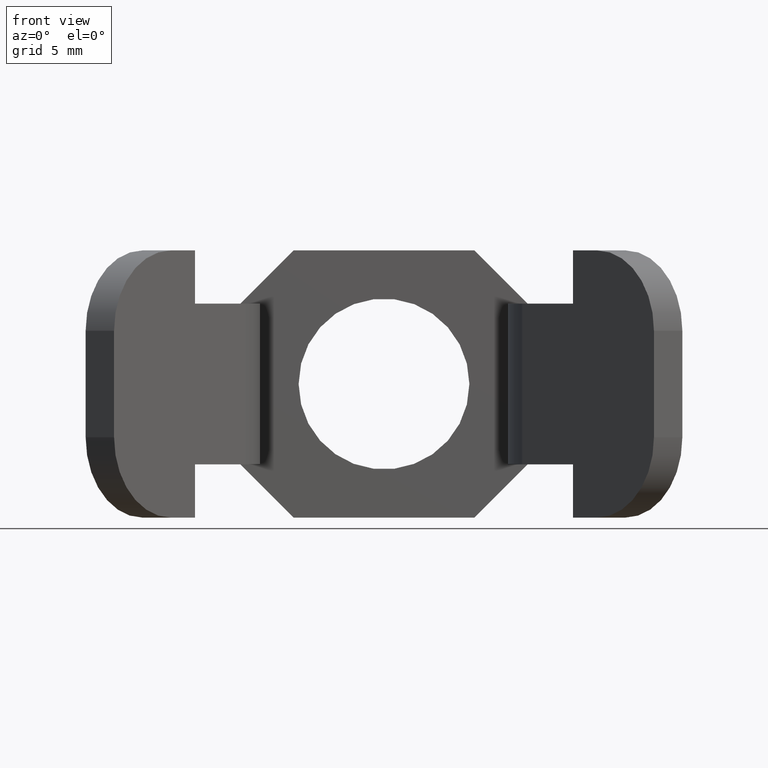
[diagram: clean part render]
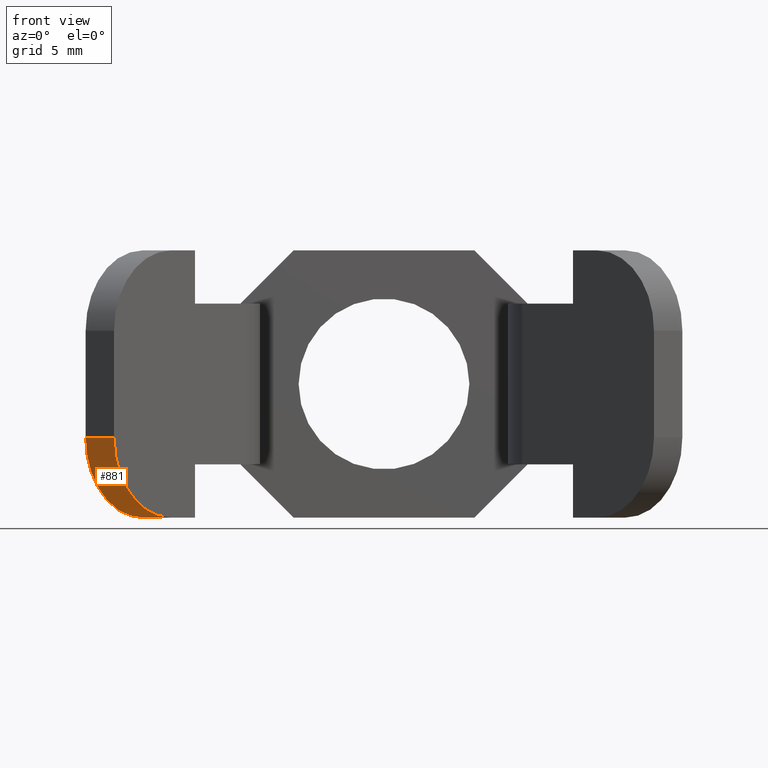
[diagram: same view with one face highlighted and labeled with its STEP entity id]
A machine part, front view. The second image highlights one B-rep face of the part: STEP entity #881.
In plain terms, the highlighted cylindrical surface (partial cylindrical patch) has radius 4 mm, axis along (0.7071, -0.7071, 0).
Its self-contained STEP definition (entity closure, byte-faithful):
#824=CARTESIAN_POINT('',(-12.023401875194395,-12.080760875157921,-6.649999999973716));
#825=VERTEX_POINT('',#824);
#832=CARTESIAN_POINT('',(-14.851828999940608,-14.909187999904134,-2.649999999973716));
#833=VERTEX_POINT('',#832);
#834=CARTESIAN_POINT('',(-12.023401875193942,-12.080760875158377,-2.649999999973716));
#835=DIRECTION('',(0.707106781186548,-0.707106781186548,0.0));
#836=DIRECTION('',(-0.707106781186548,-0.707106781186548,0.0));
#837=AXIS2_PLACEMENT_3D('',#834,#835,#836);
#838=CIRCLE('',#837,4.000000000000032);
#839=EDGE_CURVE('',#833,#825,#838,.T.);
#850=CARTESIAN_POINT('',(-10.609188312821516,-13.494974437530800,-2.649999999973716));
#851=DIRECTION('',(0.707106781186548,-0.707106781186548,0.0));
#852=DIRECTION('',(-0.707106781186548,-0.707106781186548,0.0));
#853=AXIS2_PLACEMENT_3D('',#850,#851,#852);
#854=CYLINDRICAL_SURFACE('',#853,4.000000000000032);
#855=CARTESIAN_POINT('',(-13.437615437567729,-16.323401562277013,-2.649999999973716));
#856=VERTEX_POINT('',#855);
#857=CARTESIAN_POINT('',(-13.437615437567729,-16.323401562277013,-2.649999999973716));
#858=DIRECTION('',(-0.707106781186548,0.707106781186548,0.0));
#859=VECTOR('',#858,1.999999999999695);
#860=LINE('',#857,#859);
#861=EDGE_CURVE('',#856,#833,#860,.T.);
#862=ORIENTED_EDGE('',*,*,#861,.T.);
#863=ORIENTED_EDGE('',*,*,#839,.T.);
#864=CARTESIAN_POINT('',(-10.609188312821516,-13.494974437530800,-6.649999999973716));
#865=VERTEX_POINT('',#864);
#866=CARTESIAN_POINT('',(-10.609188312821516,-13.494974437530800,-6.649999999973716));
#867=DIRECTION('',(-0.707106781186548,0.707106781186548,0.0));
#868=VECTOR('',#867,1.999999999999695);
#869=LINE('',#866,#868);
#870=EDGE_CURVE('',#865,#825,#869,.T.);
#871=ORIENTED_EDGE('',*,*,#870,.F.);
#872=CARTESIAN_POINT('',(-10.609188312821518,-13.494974437530802,-2.649999999973716));
#873=DIRECTION('',(0.707106781186548,-0.707106781186548,0.0));
#874=DIRECTION('',(-0.707106781186548,-0.707106781186548,0.0));
#875=AXIS2_PLACEMENT_3D('',#872,#873,#874);
#876=CIRCLE('',#875,4.000000000000032);
#877=EDGE_CURVE('',#856,#865,#876,.T.);
#878=ORIENTED_EDGE('',*,*,#877,.F.);
#879=EDGE_LOOP('',(#862,#863,#871,#878));
#880=FACE_OUTER_BOUND('',#879,.T.);
#881=ADVANCED_FACE('',(#880),#854,.T.);